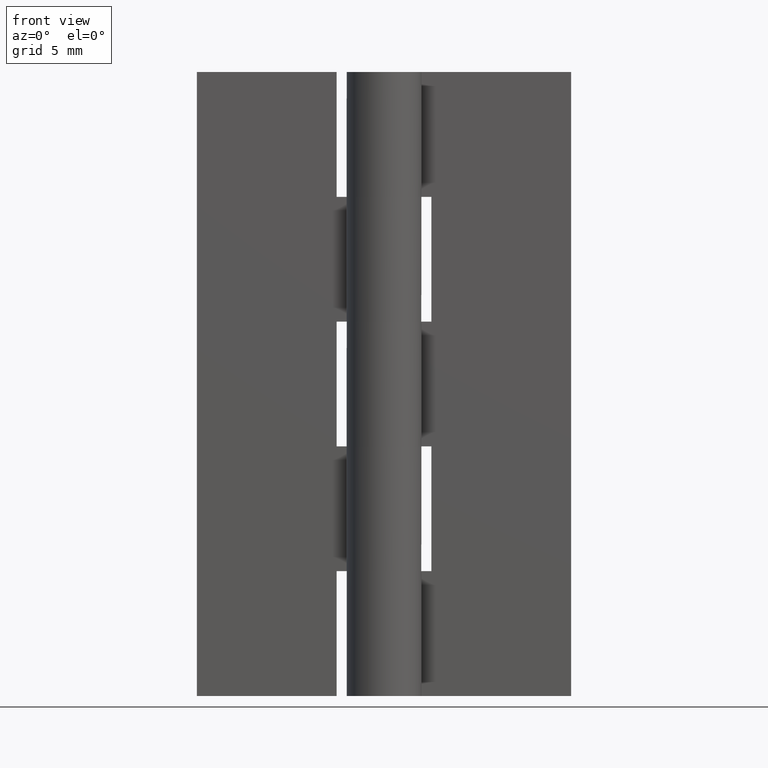
[diagram: clean part render]
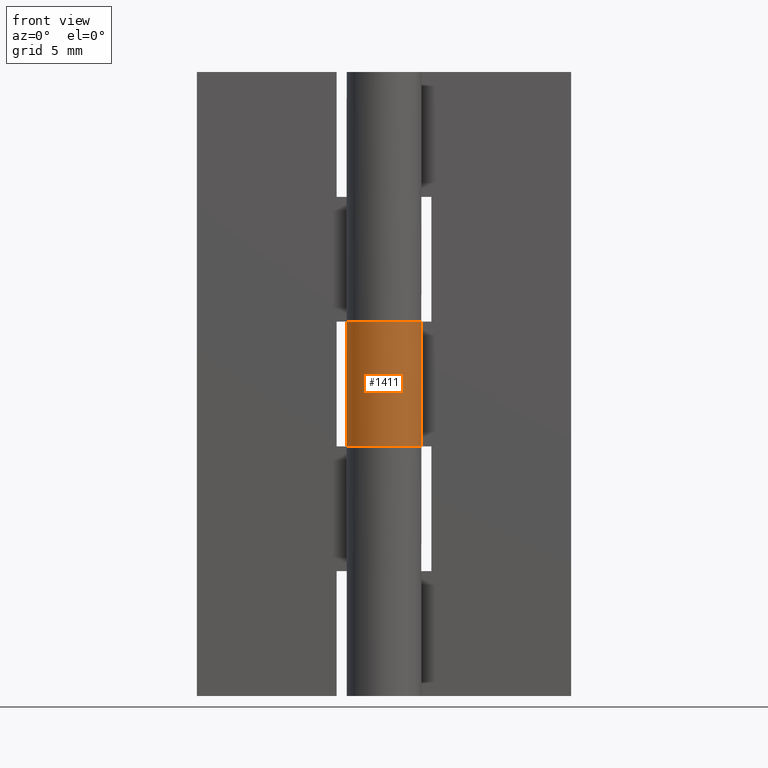
[diagram: same view with one face highlighted and labeled with its STEP entity id]
A machine part, front view. The second image highlights one B-rep face of the part: STEP entity #1411.
In plain terms, the highlighted face is a freeform B-spline surface patch.
Its self-contained STEP definition (entity closure, byte-faithful):
#789=CARTESIAN_POINT('',(2.626309197333780,1.450000000000000,20.0));
#790=VERTEX_POINT('',#789);
#796=CARTESIAN_POINT('',(0.0,3.0,20.0));
#797=VERTEX_POINT('',#796);
#798=CARTESIAN_POINT('',(0.0,3.0,20.0));
#799=CARTESIAN_POINT('',(-2.290598042424808,3.0,20.0));
#800=CARTESIAN_POINT('',(-2.894028888043301,0.790314364775724,20.0));
#801=CARTESIAN_POINT('',(-3.497459733661794,-1.419371270448550,20.0));
#802=CARTESIAN_POINT('',(-1.524795068197693,-2.583602136552761,20.0));
#803=CARTESIAN_POINT('',(0.447869597266408,-3.747833002656974,20.0));
#804=CARTESIAN_POINT('',(2.090650590886088,-2.151552952364328,20.0));
#805=CARTESIAN_POINT('',(3.733431584505768,-0.555272902071681,20.0));
#806=CARTESIAN_POINT('',(2.626309197333781,1.449999999999996,20.0));
#814=(BOUNDED_CURVE()B_SPLINE_CURVE(2,(#798,#799,#800,#801,#802,#803,#804,#805,#806),.UNSPECIFIED.,.F.,.U.)B_SPLINE_CURVE_WITH_KNOTS((3,2,2,2,3),(0.0,0.250000000000000,0.500000000000000,0.750000000000000,1.0),.UNSPECIFIED.)CURVE()GEOMETRIC_REPRESENTATION_ITEM()RATIONAL_B_SPLINE_CURVE((1.0,0.794807562115481,1.0,0.794807562115481,1.0,0.794807562115481,1.0,0.794807562115481,1.0))REPRESENTATION_ITEM(''));
#815=EDGE_CURVE('',#797,#790,#814,.T.);
#951=CARTESIAN_POINT('',(0.0,3.0,30.0));
#952=VERTEX_POINT('',#951);
#958=CARTESIAN_POINT('',(2.626309197333780,1.450000000000000,30.0));
#959=VERTEX_POINT('',#958);
#960=CARTESIAN_POINT('',(2.626309197333780,1.450000000000000,30.0));
#961=CARTESIAN_POINT('',(3.733431584505770,-0.555272902071675,30.000000000000007));
#962=CARTESIAN_POINT('',(2.090650590886091,-2.151552952364324,30.0));
#963=CARTESIAN_POINT('',(0.447869597266413,-3.747833002656972,30.000000000000007));
#964=CARTESIAN_POINT('',(-1.524795068197689,-2.583602136552764,30.0));
#965=CARTESIAN_POINT('',(-3.497459733661792,-1.419371270448555,30.000000000000007));
#966=CARTESIAN_POINT('',(-2.894028888043301,0.790314364775722,30.0));
#967=CARTESIAN_POINT('',(-2.290598042424809,3.000000000000000,30.000000000000007));
#968=CARTESIAN_POINT('',(0.0,3.0,30.0));
#976=(BOUNDED_CURVE()B_SPLINE_CURVE(2,(#960,#961,#962,#963,#964,#965,#966,#967,#968),.UNSPECIFIED.,.F.,.U.)B_SPLINE_CURVE_WITH_KNOTS((3,2,2,2,3),(0.0,0.250000000000000,0.500000000000000,0.750000000000000,1.0),.UNSPECIFIED.)CURVE()GEOMETRIC_REPRESENTATION_ITEM()RATIONAL_B_SPLINE_CURVE((1.0,0.794807562115481,1.0,0.794807562115481,1.0,0.794807562115481,1.0,0.794807562115481,1.0))REPRESENTATION_ITEM(''));
#977=EDGE_CURVE('',#959,#952,#976,.T.);
#1375=CARTESIAN_POINT('',(0.026179606495119,2.999885769192513,30.250000000000000));
#1376=CARTESIAN_POINT('',(0.026179606495119,2.999885769192513,19.743749999999999));
#1377=CARTESIAN_POINT('',(-3.591480617393748,3.031456611678275,30.250000000000011));
#1378=CARTESIAN_POINT('',(-3.591480617393748,3.031456611678275,19.743750000000002));
#1379=CARTESIAN_POINT('',(-2.952895395395788,-0.529536385766218,30.250000000000000));
#1380=CARTESIAN_POINT('',(-2.952895395395788,-0.529536385766218,19.743749999999999));
#1381=CARTESIAN_POINT('',(-2.314310173397830,-4.090529383210711,30.250000000000011));
#1382=CARTESIAN_POINT('',(-2.314310173397830,-4.090529383210711,19.743750000000002));
#1383=CARTESIAN_POINT('',(1.066952285444628,-2.803856776046965,30.250000000000000));
#1384=CARTESIAN_POINT('',(1.066952285444628,-2.803856776046965,19.743749999999999));
#1385=CARTESIAN_POINT('',(4.448214744287087,-1.517184168883220,30.250000000000011));
#1386=CARTESIAN_POINT('',(4.448214744287087,-1.517184168883220,19.743750000000002));
#1387=CARTESIAN_POINT('',(2.557920493062278,1.567495694147844,30.250000000000000));
#1388=CARTESIAN_POINT('',(2.557920493062278,1.567495694147844,19.743749999999999));
#1396=(BOUNDED_SURFACE()B_SPLINE_SURFACE(1,2,((#1375,#1377,#1379,#1381,#1383,#1385,#1387),(#1376,#1378,#1380,#1382,#1384,#1386,#1388)),.UNSPECIFIED.,.F.,.F.,.U.)B_SPLINE_SURFACE_WITH_KNOTS((2,2),(3,2,2,3),(0.0,10.506250000000010),(0.0,5.638246512160404,11.276493024320811,16.914739536481211),.UNSPECIFIED.)GEOMETRIC_REPRESENTATION_ITEM()RATIONAL_B_SPLINE_SURFACE(((1.0,0.638320090924328,1.0,0.638320090924328,1.0,0.638320090924328,1.0),(1.0,0.638320090924328,1.0,0.638320090924328,1.0,0.638320090924328,1.0)))REPRESENTATION_ITEM('')SURFACE());
#1397=ORIENTED_EDGE('',*,*,#815,.T.);
#1398=CARTESIAN_POINT('',(2.626309197333780,1.450000000000000,30.0));
#1399=CARTESIAN_POINT('',(2.626309197333780,1.450000000000000,20.0));
#1400=QUASI_UNIFORM_CURVE('',1,(#1398,#1399),.UNSPECIFIED.,.F.,.U.);
#1401=EDGE_CURVE('',#959,#790,#1400,.T.);
#1402=ORIENTED_EDGE('',*,*,#1401,.F.);
#1403=ORIENTED_EDGE('',*,*,#977,.T.);
#1404=CARTESIAN_POINT('',(0.0,3.0,30.0));
#1405=CARTESIAN_POINT('',(0.0,3.0,20.0));
#1406=QUASI_UNIFORM_CURVE('',1,(#1404,#1405),.UNSPECIFIED.,.F.,.U.);
#1407=EDGE_CURVE('',#952,#797,#1406,.T.);
#1408=ORIENTED_EDGE('',*,*,#1407,.T.);
#1409=EDGE_LOOP('',(#1397,#1402,#1403,#1408));
#1410=FACE_OUTER_BOUND('',#1409,.T.);
#1411=ADVANCED_FACE('',(#1410),#1396,.T.);